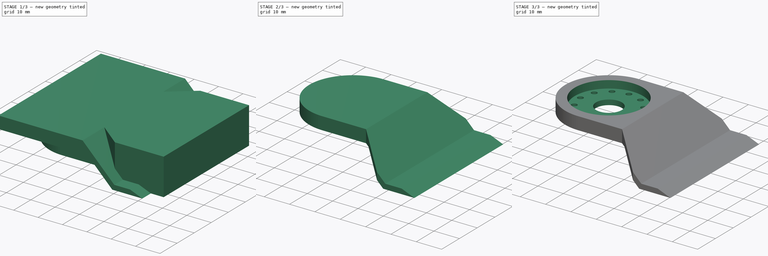
[diagram: build sequence overview — one tinted view per stage of 3, left to right]
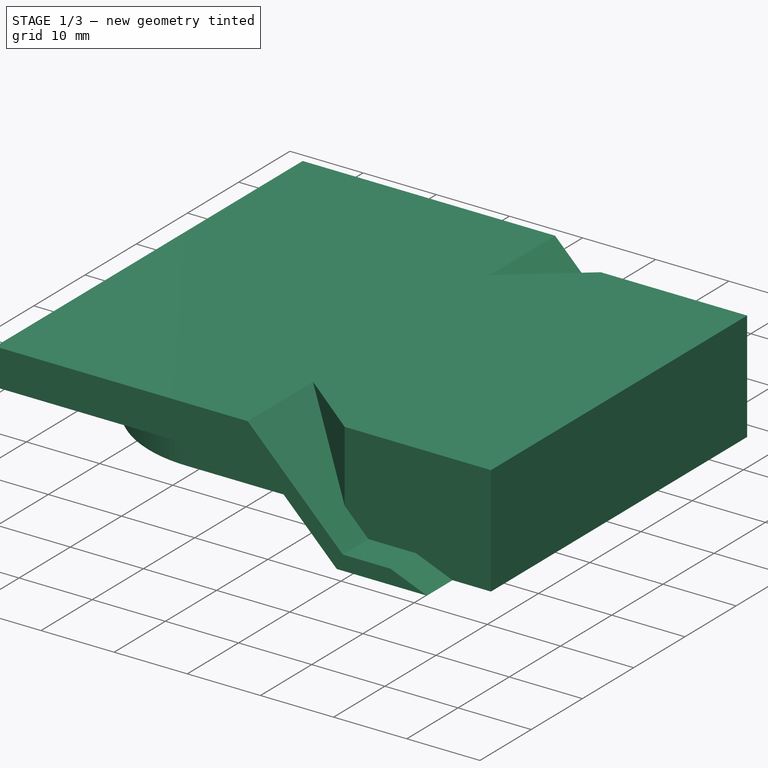
[diagram: stage 1 of 3 — iso view after this stage's code; geometry added in this stage tinted green]
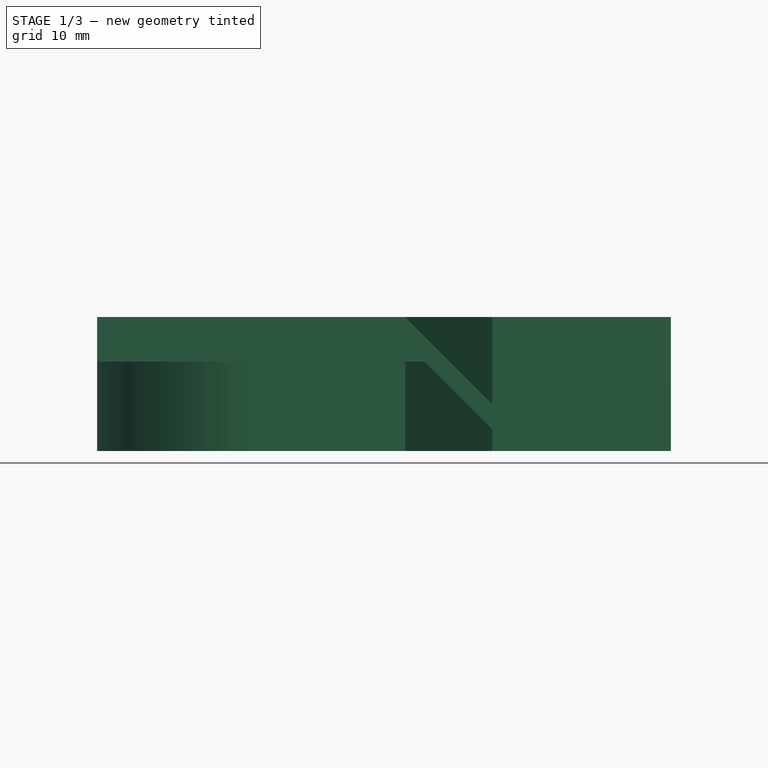
[diagram: stage 1 of 3 — front view after this stage's code; geometry added in this stage tinted green]
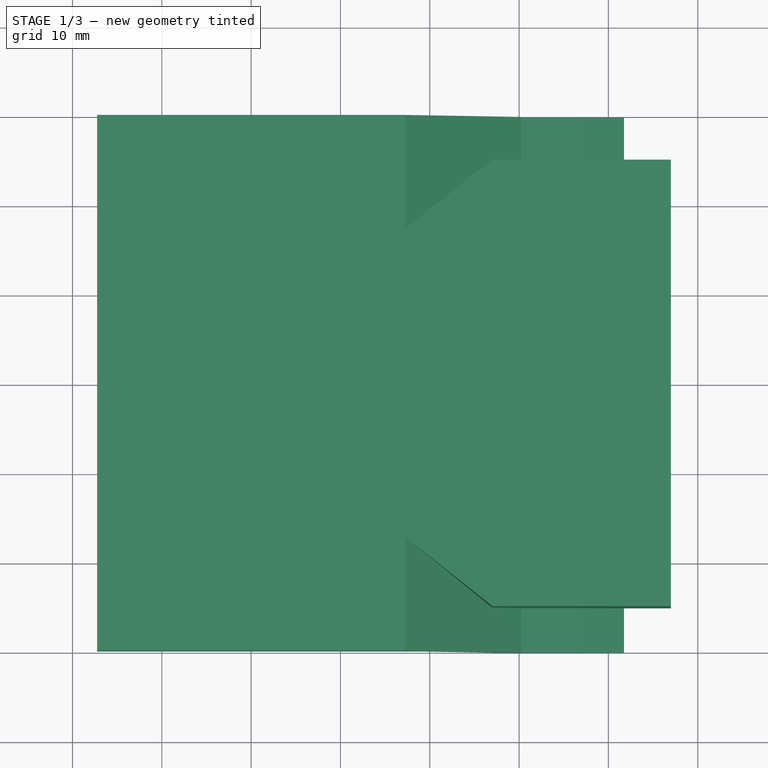
[diagram: stage 1 of 3 — top view after this stage's code; geometry added in this stage tinted green]
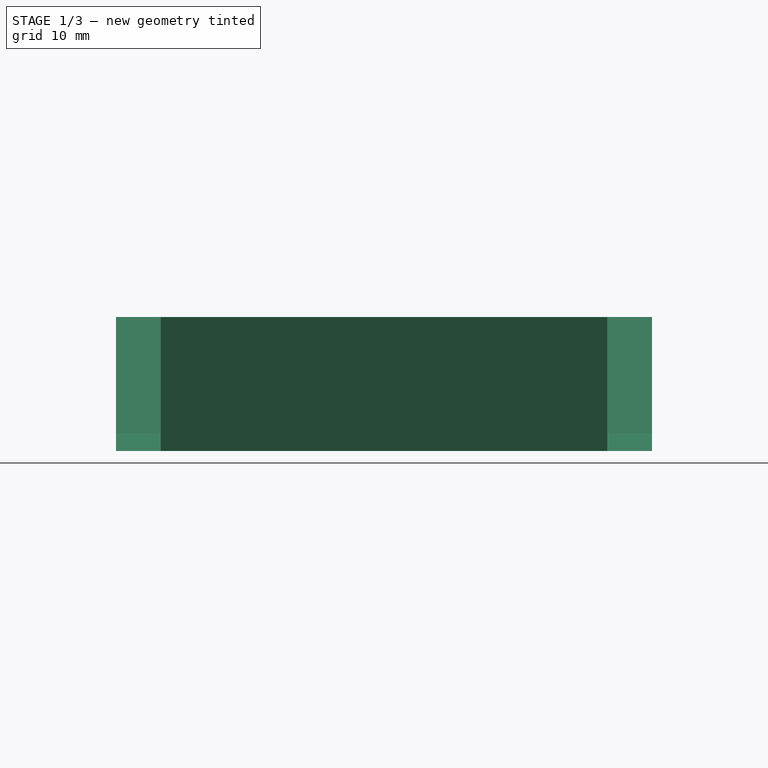
[diagram: stage 1 of 3 — right view after this stage's code; geometry added in this stage tinted green]
FCSTD DOCUMENT  (FreeCAD 0.16R)
Label: blade
License: CC-BY 3.0
LicenseURL: http://creativecommons.org/licenses/by/3.0/
objects: Sketcher::SketchObject×4, PartDesign::Pad×2, PartDesign::Pocket×2, Part::MultiCommon×1
note: 13 computed .brp shape members not serialized (recipe doc carries the construction recipe); baked Part::Feature solids carry a one-line shape summary decoded from their .brp

FEATURE [Sketcher::SketchObject] Sketch  label="Outline"
  sketch-geometry (10):
    g0: ArcOfCircle CenterX=-3.08198e-05 CenterY=0 CenterZ=0 NormalX=0 NormalY=0 NormalZ=1 Radius=17.25 StartAngle=1.57079 EndAngle=4.71239
    g1: LineSegment [constr] StartX=27 StartY=25 StartZ=0 EndX=27 EndY=-25 EndZ=0
    g2: LineSegment [constr] StartX=17.25 StartY=17.25 StartZ=0 EndX=17.25 EndY=-17.25 EndZ=0
    g3: LineSegment StartX=17.25 StartY=17.25 StartZ=0 EndX=0 EndY=17.25 EndZ=0
    g4: LineSegment StartX=17.25 StartY=-17.25 StartZ=0 EndX=27 EndY=-25 EndZ=0
    g5: LineSegment StartX=17.25 StartY=17.25 StartZ=0 EndX=27 EndY=25 EndZ=0
    g6: LineSegment StartX=27 StartY=-25 StartZ=0 EndX=47 EndY=-25 EndZ=0
    g7: LineSegment StartX=47 StartY=-25 StartZ=0 EndX=47 EndY=25 EndZ=0
    g8: LineSegment StartX=47 StartY=25 StartZ=0 EndX=27 EndY=25 EndZ=0
    g9: LineSegment StartX=0 StartY=-17.25 StartZ=0 EndX=17.25 EndY=-17.25 EndZ=0
  constraints (28):
    c: PointOnObject(g0,g-2)
    c: PointOnObject(g0,g-2)
    c: Vertical(g1)
    c: Symmetric(g1,g1,g-1)
    c: DistanceY(g1) = -50
    c: DistanceX(g0,g1) = 27
    c: Symmetric(g2,g2,g-1)
    c: Coincident(g3,g0)
    c: Coincident(g1,g4)
    c: Coincident(g5,g1)
    c: Radius(g0) = 17.25
    c: DistanceY(g2) = -34.5
    c: DistanceX(g0,g2) = 17.25
    c: Coincident(g7,g8)
    c: Horizontal(g8)
    c: Horizontal(g6)
    c: Vertical(g7)
    c: Coincident(g6,g7)
    c: Coincident(g1,g6)
    c: Coincident(g8,g1)
    c: Coincident(g2,g3)
    c: Horizontal(g3)
    c: Coincident(g9,g0)
    c: Coincident(g9,g2)
    c: Coincident(g5,g2)
    c: Coincident(g4,g2)
    c: DistanceX(g6,g6) = 20
    c: Horizontal(g9)
FEATURE [Sketcher::SketchObject] Sketch002  label="Profile"
  Placement = pos=(0,0,0) rot=(1,0,0;1.5708rad)
  sketch-geometry (10):
    g0: LineSegment StartX=19.4216 StartY=10 StartZ=0 EndX=-17.25 EndY=10 EndZ=0
    g1: LineSegment StartX=29.4216 StartY=0 StartZ=0 EndX=19.4216 EndY=10 EndZ=0
    g2: LineSegment StartX=17.25 StartY=15 StartZ=0 EndX=30.25 EndY=2 EndZ=0
    g3: LineSegment StartX=30.25 StartY=2 StartZ=0 EndX=36.75 EndY=2 EndZ=0
    g4: LineSegment StartX=36.75 StartY=2 StartZ=0 EndX=41.75 EndY=0 EndZ=0
    g5: LineSegment StartX=-17.25 StartY=10 StartZ=0 EndX=-17.25 EndY=15 EndZ=0
    g6: LineSegment StartX=-17.25 StartY=15 StartZ=0 EndX=17.25 EndY=15 EndZ=0
    g7: LineSegment StartX=29.4216 StartY=0 StartZ=0 EndX=41.75 EndY=0 EndZ=0
    g8: LineSegment [constr] StartX=24.4216 StartY=5 StartZ=0 EndX=25.8358 EndY=6.41421 EndZ=0
    g9: GeomPoint [constr] X=0 Y=15 Z=0
  constraints (30):
    c: PointOnObject(g1,g-1)
    c: Horizontal(g0)
    c: Coincident(g1,g0)
    c: Coincident(g2,g3)
    c: Horizontal(g3)
    c: Coincident(g3,g4)
    c: PointOnObject(g4,g-1)
    c: Parallel(g2,g1)
    c: DistanceY(g2,g1) = -2
    c: Coincident(g0,g5)
    c: Vertical(g5)
    c: Coincident(g5,g6)
    c: Horizontal(g6)
    c: Coincident(g7,g4)
    c: DistanceX(g6,g6) = 34.5
    c: DistanceX(g2,g2) = 13
    c: Coincident(g2,g6)
    c: DistanceX(g2,g3) = 6.5
    c: DistanceX(g3,g4) = 5
    c: Coincident(g7,g1)
    c: PointOnObject(g8,g1)
    c: PointOnObject(g8,g2)
    c: Perpendicular(g2,g8)
    c: Distance(g8) = 2
    c: Symmetric(g1,g1,g8)
    c: PointOnObject(g9,g6)
    c: Symmetric(g6,g6,g9)
    c: DistanceY(g-1,g0) = 10
    c: DistanceY(g0,g5) = 5
    c: PointOnObject(g9,g-2)
FEATURE [PartDesign::Pad] Pad  label="Outline Pad"
  Length = 15
  Length2 = 100
  Sketch = -> Sketch
  Type = 0
FEATURE [PartDesign::Pad] Pad001  label="Profile Pad"
  Length = 60
  Length2 = 100
  Midplane = true
  Placement = pos=(0,0,0) rot=(1,0,0;1.5708rad)
  Sketch = -> Sketch002
  Type = 0
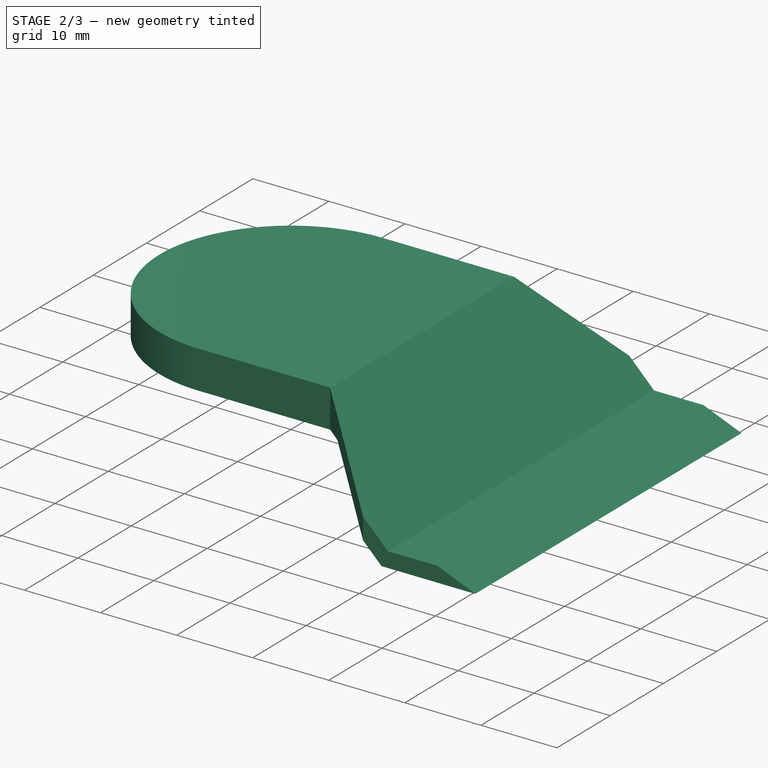
[diagram: stage 2 of 3 — iso view after this stage's code; geometry added in this stage tinted green]
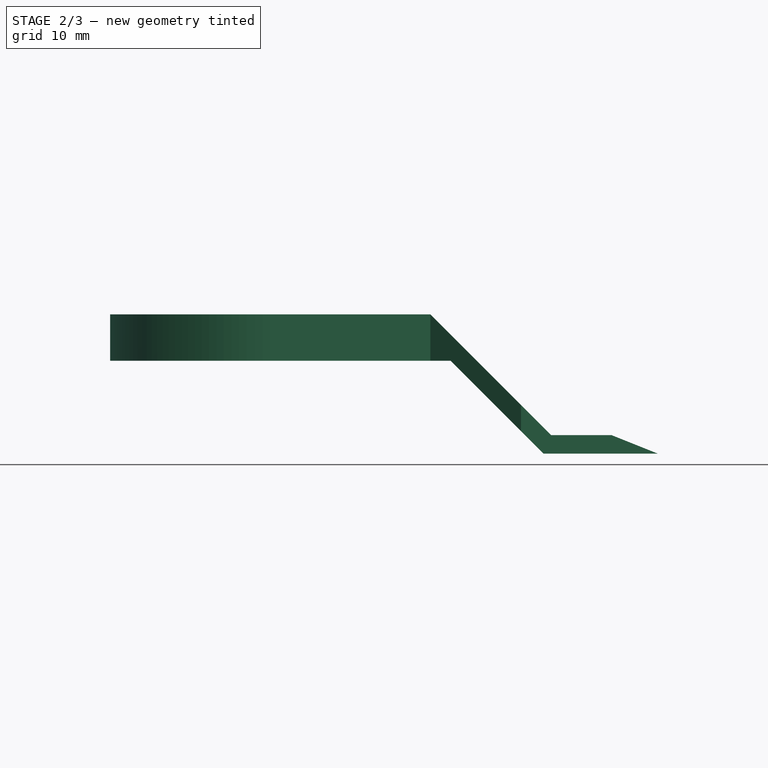
[diagram: stage 2 of 3 — front view after this stage's code; geometry added in this stage tinted green]
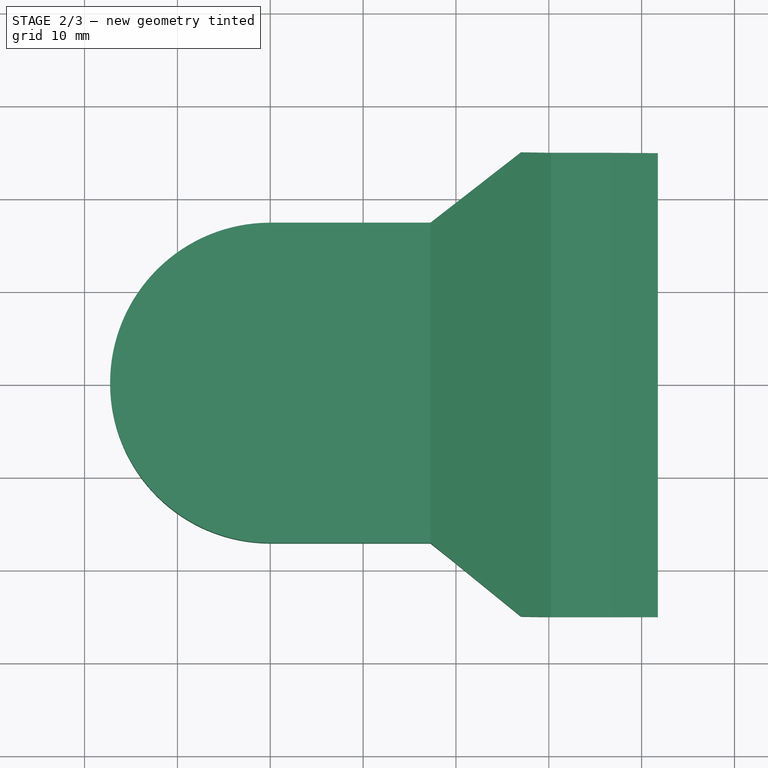
[diagram: stage 2 of 3 — top view after this stage's code; geometry added in this stage tinted green]
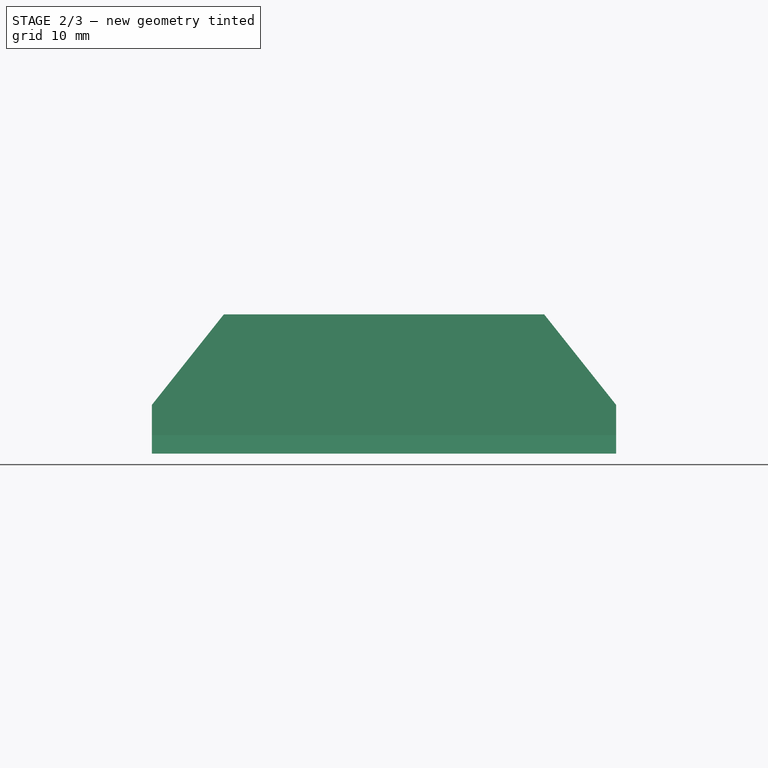
[diagram: stage 2 of 3 — right view after this stage's code; geometry added in this stage tinted green]
FEATURE [Part::MultiCommon] Common  label="body"
  Shapes = -> [Pad,Pad001]
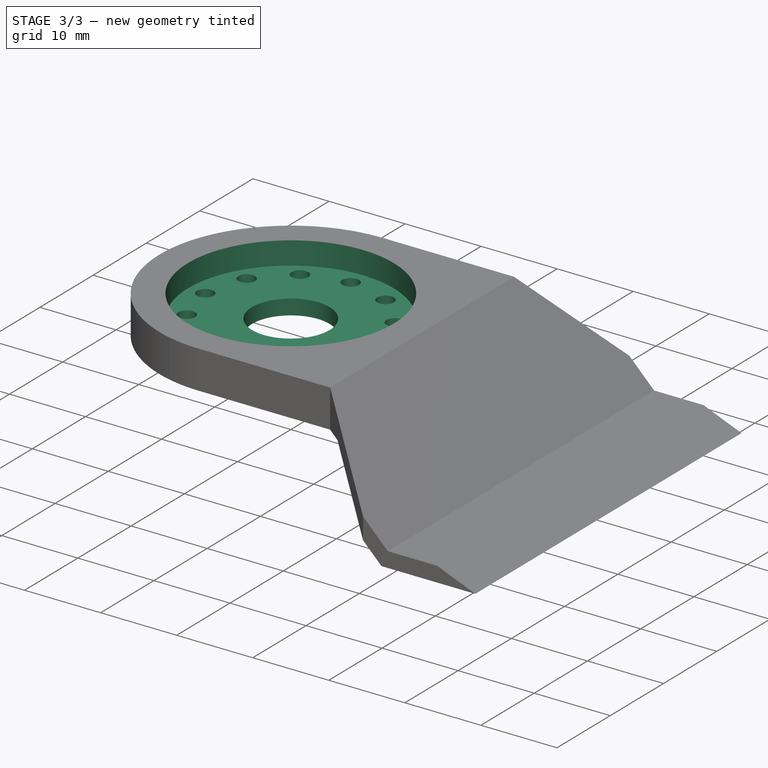
[diagram: stage 3 of 3 — iso view after this stage's code; geometry added in this stage tinted green]
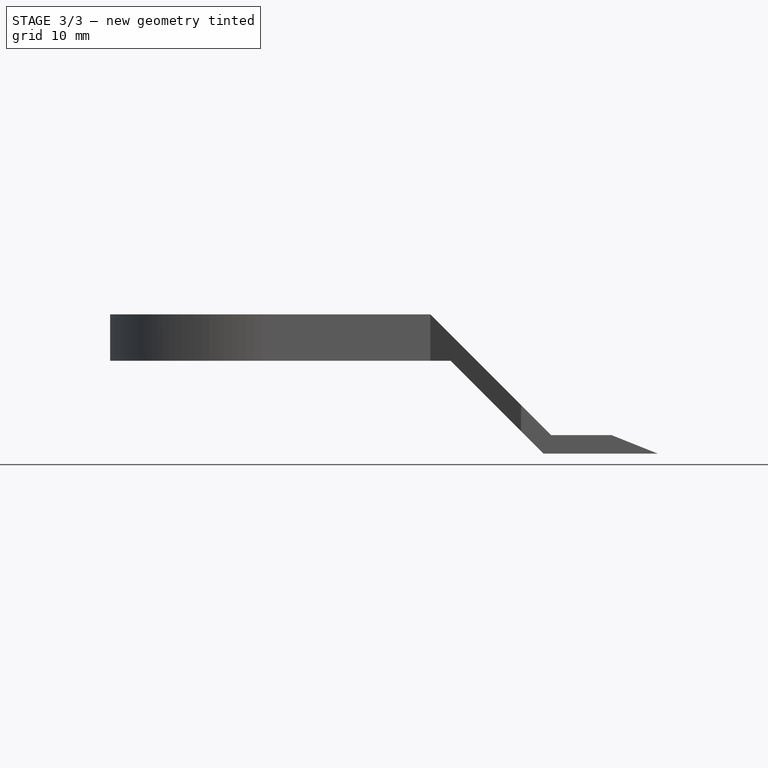
[diagram: stage 3 of 3 — front view after this stage's code; geometry added in this stage tinted green]
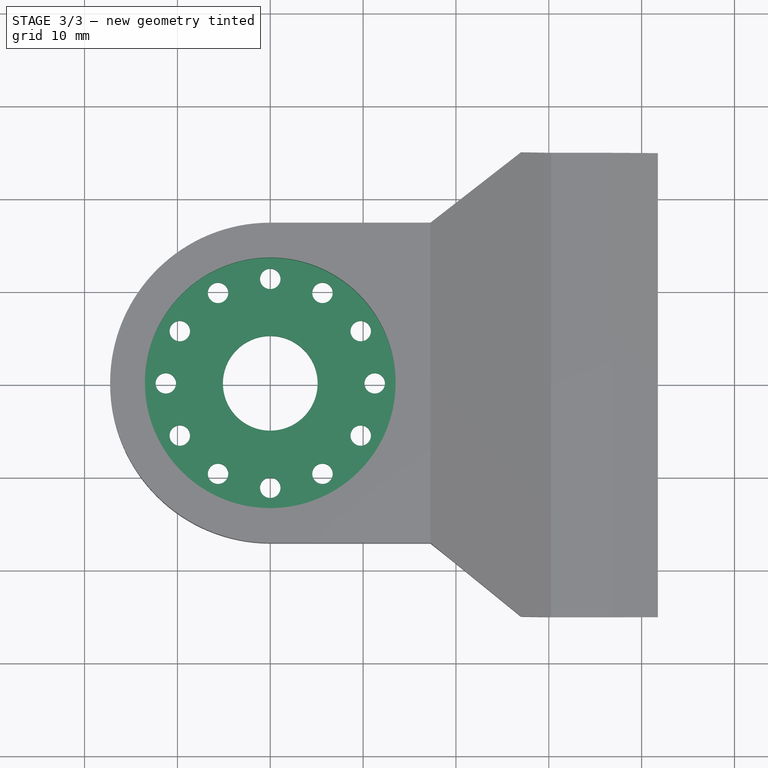
[diagram: stage 3 of 3 — top view after this stage's code; geometry added in this stage tinted green]
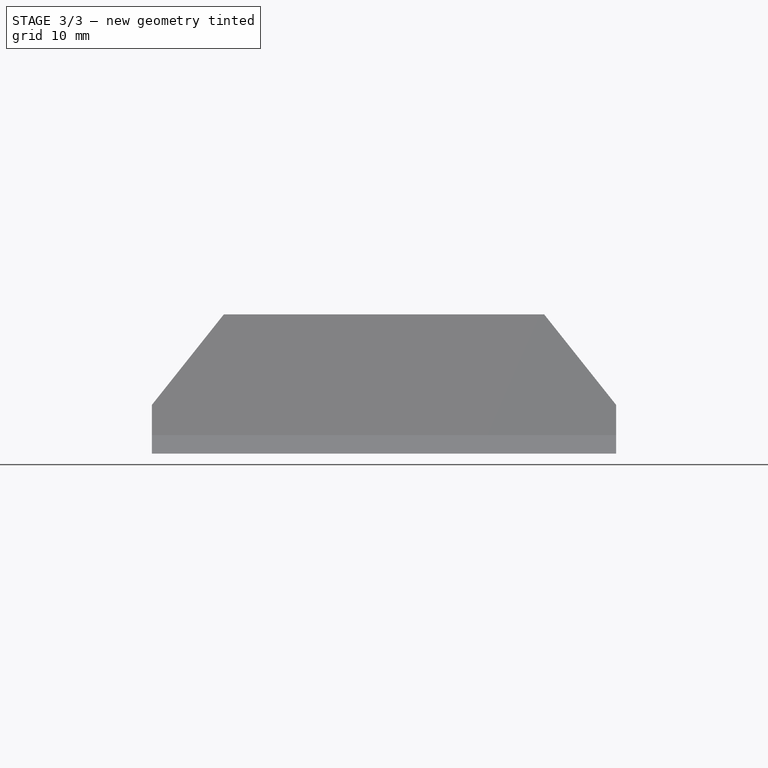
[diagram: stage 3 of 3 — right view after this stage's code; geometry added in this stage tinted green]
FEATURE [Sketcher::SketchObject] Sketch001  label="Pocket outline"
  Placement = pos=(0,0,15) rot=(0,0,1;0rad)
  Support = -> Common [Face3]
  sketch-geometry (1):
    g0: Circle CenterX=0 CenterY=0 CenterZ=0 NormalX=0 NormalY=0 NormalZ=1 Radius=13.5
  constraints (2):
    c: Coincident(g0,g-1)
    c: Radius(g0) = 13.5
FEATURE [PartDesign::Pocket] Pocket  label="pocket"
  Length = 3
  Sketch = -> Sketch001
  Type = 0
FEATURE [Sketcher::SketchObject] Sketch003  label="Holes outline"
  Placement = pos=(0,0,12) rot=(0,0,1;0rad)
  Support = -> Pocket [Face16]
  sketch-geometry (26):
    g0: Circle CenterX=0 CenterY=0 CenterZ=0 NormalX=0 NormalY=0 NormalZ=1 Radius=5.1
    g1: Circle [constr] CenterX=0 CenterY=0 CenterZ=0 NormalX=0 NormalY=0 NormalZ=1 Radius=11.25
    g2: Circle CenterX=-11.25 CenterY=0 CenterZ=0 NormalX=0 NormalY=0 NormalZ=1 Radius=1.1
    g3: Circle CenterX=0 CenterY=11.25 CenterZ=0 NormalX=0 NormalY=0 NormalZ=1 Radius=1.1
    g4: Circle CenterX=11.25 CenterY=0 CenterZ=0 NormalX=0 NormalY=0 NormalZ=1 Radius=1.1
    g5: Circle CenterX=0 CenterY=-11.25 CenterZ=0 NormalX=0 NormalY=0 NormalZ=1 Radius=1.1
    g6: Circle CenterX=-5.625 CenterY=9.74279 CenterZ=0 NormalX=0 NormalY=0 NormalZ=1 Radius=1.1
    g7: Circle CenterX=-9.74279 CenterY=5.625 CenterZ=0 NormalX=0 NormalY=0 NormalZ=1 Radius=1.1
    g8: Circle CenterX=-9.74279 CenterY=-5.625 CenterZ=0 NormalX=0 NormalY=0 NormalZ=1 Radius=1.1
    g9: Circle CenterX=-5.625 CenterY=-9.74279 CenterZ=0 NormalX=0 NormalY=0 NormalZ=1 Radius=1.1
    g10: Circle CenterX=5.625 CenterY=-9.74279 CenterZ=0 NormalX=0 NormalY=0 NormalZ=1 Radius=1.1
    g11: Circle CenterX=9.74279 CenterY=-5.625 CenterZ=0 NormalX=0 NormalY=0 NormalZ=1 Radius=1.1
    g12: Circle CenterX=5.625 CenterY=9.74279 CenterZ=0 NormalX=0 NormalY=0 NormalZ=1 Radius=1.1
    g13: Circle CenterX=9.74279 CenterY=5.625 CenterZ=0 NormalX=0 NormalY=0 NormalZ=1 Radius=1.1
    g14: LineSegment [constr] StartX=0 StartY=11.25 StartZ=0 EndX=-5.625 EndY=9.74279 EndZ=0
    g15: LineSegment [constr] StartX=-5.625 StartY=9.74279 StartZ=0 EndX=-9.74279 EndY=5.625 EndZ=0
    g16: LineSegment [constr] StartX=-9.74279 StartY=5.625 StartZ=0 EndX=-11.25 EndY=0 EndZ=0
    g17: LineSegment [constr] StartX=-11.25 StartY=0 StartZ=0 EndX=-9.74279 EndY=-5.625 EndZ=0
    g18: LineSegment [constr] StartX=-9.74279 StartY=-5.625 StartZ=0 EndX=-5.625 EndY=-9.74279 EndZ=0
    g19: LineSegment [constr] StartX=-5.625 StartY=-9.74279 StartZ=0 EndX=0 EndY=-11.25 EndZ=0
    g20: LineSegment [constr] StartX=0 StartY=-11.25 StartZ=0 EndX=5.625 EndY=-9.74279 EndZ=0
    g21: LineSegment [constr] StartX=5.625 StartY=-9.74279 StartZ=0 EndX=9.74279 EndY=-5.625 EndZ=0
    g22: LineSegment [constr] StartX=9.74279 StartY=-5.625 StartZ=0 EndX=11.25 EndY=0 EndZ=0
    g23: LineSegment [constr] StartX=11.25 StartY=0 StartZ=0 EndX=9.74279 EndY=5.625 EndZ=0
    g24: LineSegment [constr] StartX=9.74279 StartY=5.625 StartZ=0 EndX=5.625 EndY=9.74279 EndZ=0
    g25: LineSegment [constr] StartX=5.625 StartY=9.74279 StartZ=0 EndX=0 EndY=11.25 EndZ=0
  constraints (65):
    c: PointOnObject(g2,g1)
    c: PointOnObject(g3,g1)
    c: PointOnObject(g3,g-2)
    c: Equal(g3,g2)
    c: PointOnObject(g2,g-1)
    c: Equal(g3,g4)
    c: PointOnObject(g4,g-1)
    c: PointOnObject(g4,g1)
    c: Equal(g5,g4)
    c: PointOnObject(g5,g-2)
    c: PointOnObject(g5,g1)
    c: Radius(g1) = 11.25
    c: Radius(g0) = 5.1
    c: Radius(g3) = 1.1
    c: PointOnObject(g1,g-1)
    c: Coincident(g0,g-1)
    c: PointOnObject(g1,g-2)
    c: Equal(g8,g7)
    c: Equal(g7,g6)
    c: Equal(g6,g9)
    c: Equal(g9,g10)
    c: Equal(g10,g11)
    c: Equal(g11,g13)
    c: Equal(g13,g12)
    c: Equal(g12,g3)
    c: PointOnObject(g6,g1)
    c: PointOnObject(g7,g1)
    c: PointOnObject(g8,g1)
    c: PointOnObject(g9,g1)
    c: PointOnObject(g10,g1)
    c: PointOnObject(g11,g1)
    c: PointOnObject(g13,g1)
    c: PointOnObject(g12,g1)
    c: Coincident(g14,g6)
    c: Coincident(g14,g3)
    c: Coincident(g15,g7)
    c: Coincident(g16,g7)
    c: Equal(g14,g15)
    c: Equal(g15,g16)
    c: Coincident(g17,g2)
    c: Coincident(g17,g8)
    c: Coincident(g18,g8)
    c: Coincident(g18,g9)
    c: Coincident(g19,g9)
    c: Coincident(g19,g5)
    c: Equal(g17,g18)
    c: Equal(g18,g19)
    c: Coincident(g20,g5)
    c: Coincident(g21,g20)
    c: Coincident(g21,g10)
    c: Coincident(g11,g22)
    c: Coincident(g11,g21)
    c: Coincident(g23,g22)
    c: Coincident(g23,g4)
    c: Equal(g20,g21)
    c: Equal(g21,g22)
    c: Coincident(g24,g23)
    c: Coincident(g24,g13)
    c: Coincident(g24,g25)
    c: Coincident(g24,g12)
    c: Coincident(g15,g6)
    c: Coincident(g16,g2)
    c: Coincident(g25,g3)
    c: Equal(g25,g24)
    c: Equal(g24,g23)
FEATURE [PartDesign::Pocket] Pocket001  label="holes"
  Length = 5
  Sketch = -> Sketch003
  Type = 0
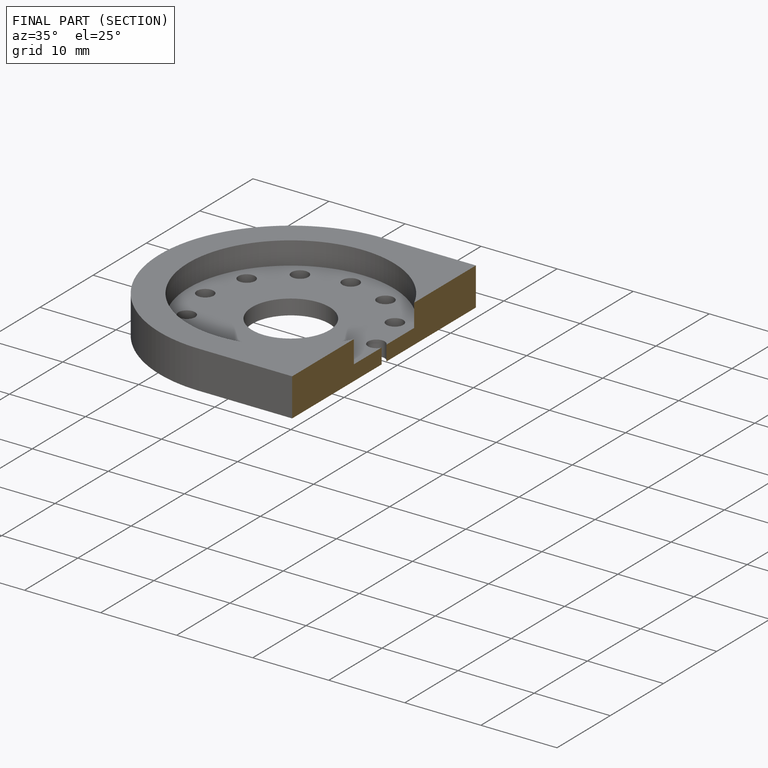
[diagram: finished part — half-section view (interior)]
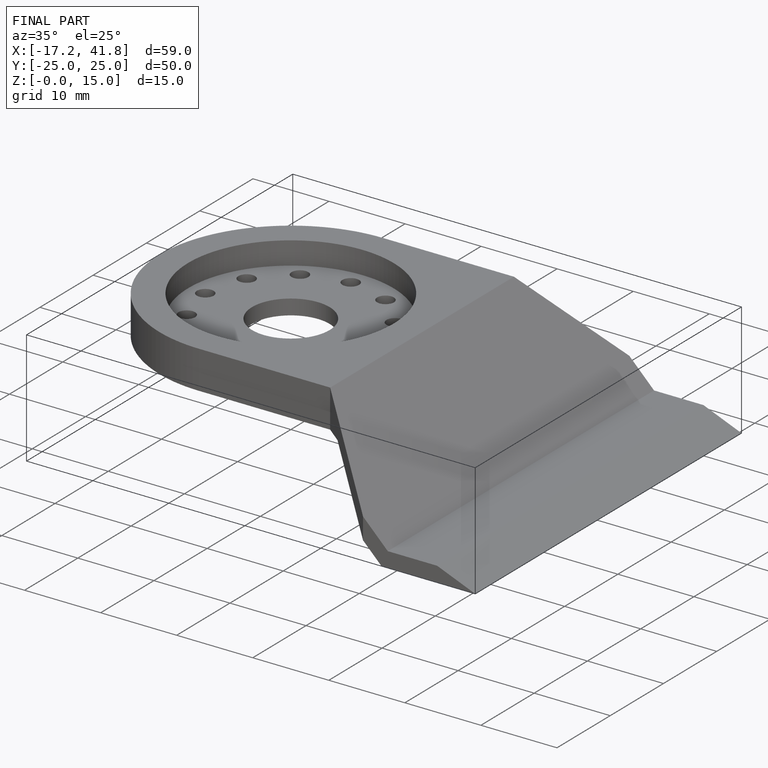
[diagram: finished part — iso view with bounding-box wireframe]
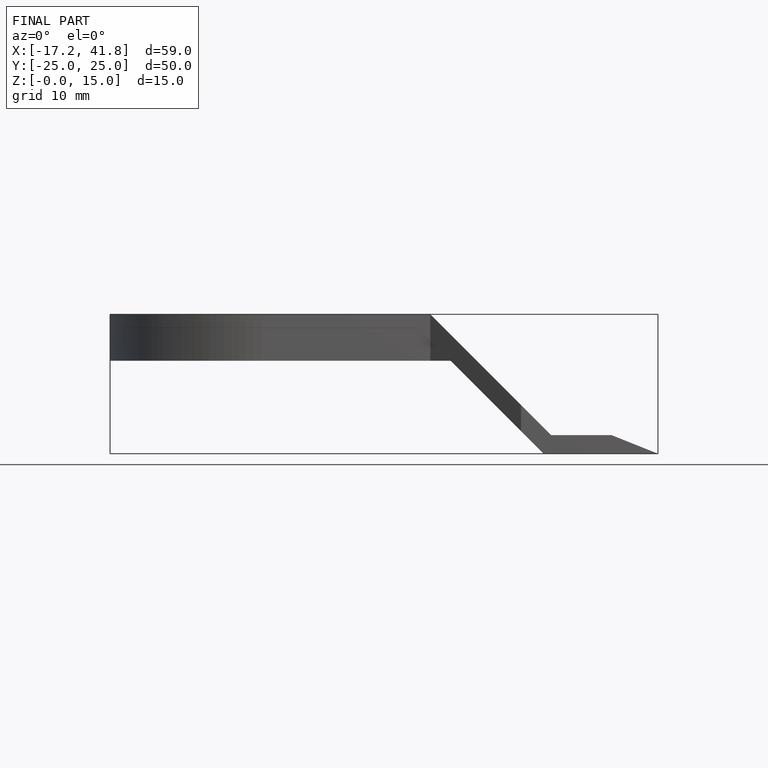
[diagram: finished part — front view with bounding-box wireframe]
